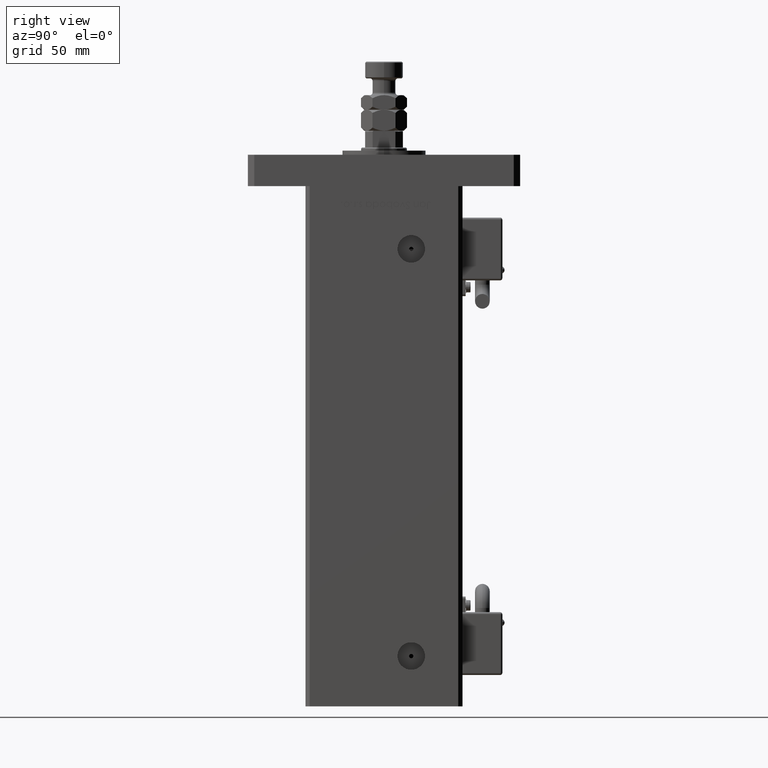
[diagram: clean part render]
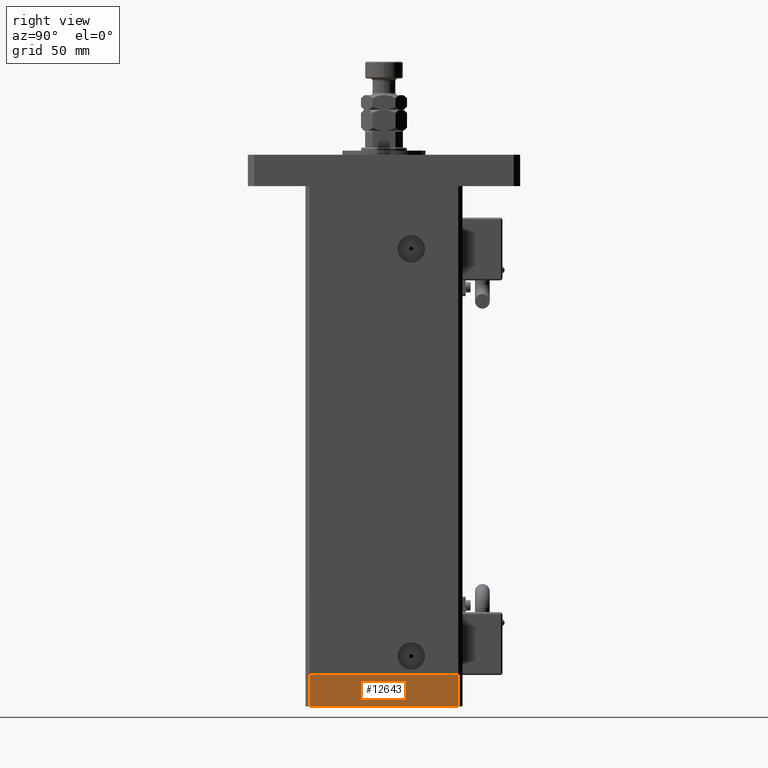
[diagram: same view with one face highlighted and labeled with its STEP entity id]
A machine part, right view. The second image highlights one B-rep face of the part: STEP entity #12643.
In plain terms, the highlighted planar face has unit normal (1, -0, 0).
Its self-contained STEP definition (entity closure, byte-faithful):
#3812 = CARTESIAN_POINT ( 'NONE',  ( -42.50000000000000711, 35.49999999999997158, -15.00000000000000000 ) ) ;
#5701 = DIRECTION ( 'NONE',  ( -1.000000000000000000, -9.773090005503140331E-17, 0.000000000000000000 ) ) ;
#6325 = EDGE_LOOP ( 'NONE', ( #34859, #28136, #45414, #14541 ) ) ;
#7403 = CARTESIAN_POINT ( 'NONE',  ( -42.50000000000000000, -35.50000000000000711, -15.00000000000000000 ) ) ;
#12197 = VECTOR ( 'NONE', #39733, 1000.000000000000000 ) ;
#12484 = VERTEX_POINT ( 'NONE', #37583 ) ;
#12643 = ADVANCED_FACE ( 'NONE', ( #32204 ), #18097, .T. ) ;
#14541 = ORIENTED_EDGE ( 'NONE', *, *, #33630, .T. ) ;
#16247 = LINE ( 'NONE', #43023, #18950 ) ;
#16292 = LINE ( 'NONE', #25386, #57421 ) ;
#18097 = PLANE ( 'NONE',  #40765 ) ;
#18950 = VECTOR ( 'NONE', #33038, 1000.000000000000000 ) ;
#24299 = CARTESIAN_POINT ( 'NONE',  ( -42.50000000000000711, 35.49999999999997158, 0.000000000000000000 ) ) ;
#25386 = CARTESIAN_POINT ( 'NONE',  ( -42.50000000000000711, 35.49999999999997158, -15.00000000000000000 ) ) ;
#25443 = VECTOR ( 'NONE', #56325, 1000.000000000000000 ) ;
#27024 = LINE ( 'NONE', #3812, #12197 ) ;
#28136 = ORIENTED_EDGE ( 'NONE', *, *, #56942, .F. ) ;
#29787 = LINE ( 'NONE', #7403, #25443 ) ;
#32204 = FACE_OUTER_BOUND ( 'NONE', #6325, .T. ) ;
#32789 = CARTESIAN_POINT ( 'NONE',  ( -42.50000000000000711, 35.49999999999997158, -15.00000000000000000 ) ) ;
#33038 = DIRECTION ( 'NONE',  ( 9.773090005503140331E-17, -1.000000000000000000, 0.000000000000000000 ) ) ;
#33630 = EDGE_CURVE ( 'NONE', #12484, #53176, #29787, .T. ) ;
#34716 = VERTEX_POINT ( 'NONE', #24299 ) ;
#34859 = ORIENTED_EDGE ( 'NONE', *, *, #36170, .F. ) ;
#36170 = EDGE_CURVE ( 'NONE', #34716, #53176, #16247, .T. ) ;
#36914 = CARTESIAN_POINT ( 'NONE',  ( -42.50000000000000000, -35.50000000000000711, 0.000000000000000000 ) ) ;
#37583 = CARTESIAN_POINT ( 'NONE',  ( -42.50000000000000000, -35.50000000000000711, -15.00000000000000000 ) ) ;
#39236 = DIRECTION ( 'NONE',  ( 0.000000000000000000, 0.000000000000000000, 1.000000000000000000 ) ) ;
#39733 = DIRECTION ( 'NONE',  ( 9.773090005503140331E-17, -1.000000000000000000, 0.000000000000000000 ) ) ;
#40765 = AXIS2_PLACEMENT_3D ( 'NONE', #32789, #5701, #41037 ) ;
#41037 = DIRECTION ( 'NONE',  ( 9.773090005503140331E-17, -1.000000000000000000, 0.000000000000000000 ) ) ;
#43023 = CARTESIAN_POINT ( 'NONE',  ( -42.50000000000000711, 35.49999999999997158, 0.000000000000000000 ) ) ;
#45414 = ORIENTED_EDGE ( 'NONE', *, *, #55865, .T. ) ;
#46322 = CARTESIAN_POINT ( 'NONE',  ( -42.50000000000000711, 35.49999999999997158, -15.00000000000000000 ) ) ;
#51999 = VERTEX_POINT ( 'NONE', #46322 ) ;
#53176 = VERTEX_POINT ( 'NONE', #36914 ) ;
#55865 = EDGE_CURVE ( 'NONE', #51999, #12484, #27024, .T. ) ;
#56325 = DIRECTION ( 'NONE',  ( 0.000000000000000000, 0.000000000000000000, 1.000000000000000000 ) ) ;
#56942 = EDGE_CURVE ( 'NONE', #51999, #34716, #16292, .T. ) ;
#57421 = VECTOR ( 'NONE', #39236, 1000.000000000000000 ) ;